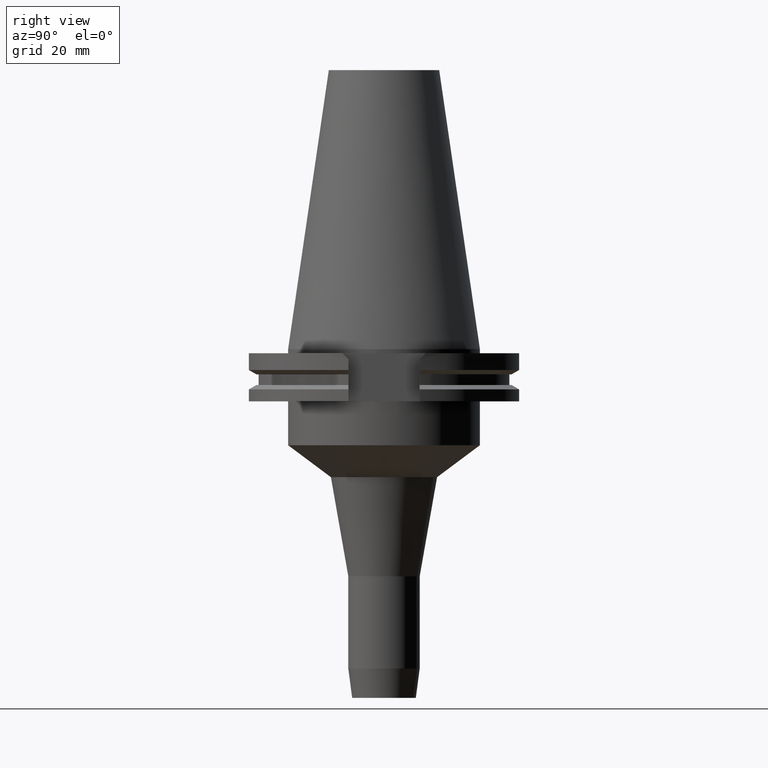
[diagram: clean part render]
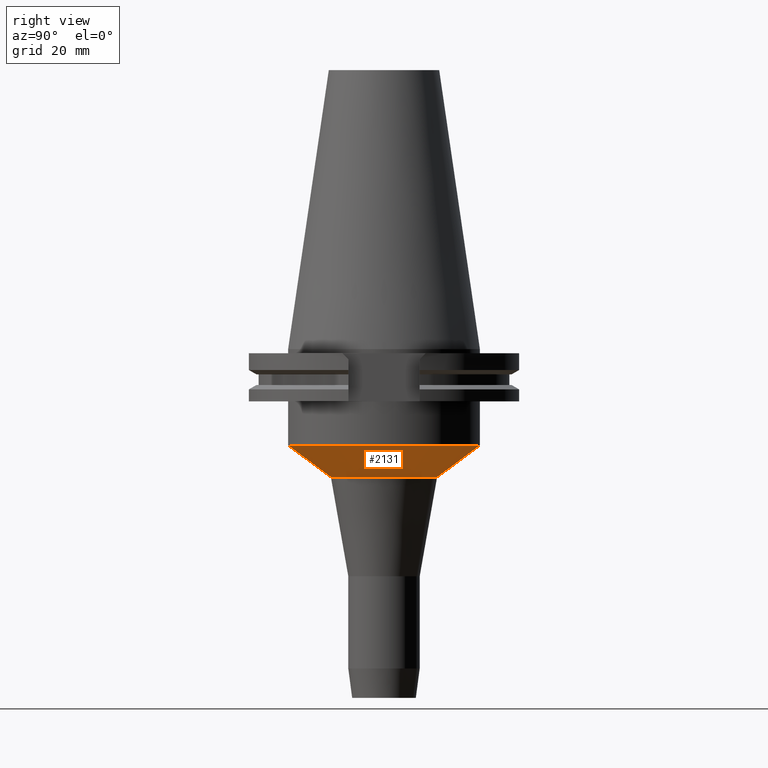
[diagram: same view with one face highlighted and labeled with its STEP entity id]
A machine part, right view. The second image highlights one B-rep face of the part: STEP entity #2131.
In plain terms, the highlighted conical surface has half-angle 53.274 deg.
Its self-contained STEP definition (entity closure, byte-faithful):
#830=DIRECTION('',(0.E0,-8.015043680126E-1,-5.979889196772E-1));
#831=VECTOR('',#830,1.945319080573E1);
#832=CARTESIAN_POINT('',(0.E0,3.4925E1,-3.5E1));
#833=LINE('',#832,#831);
#837=CARTESIAN_POINT('',(0.E0,0.E0,-3.5E1));
#838=DIRECTION('',(0.E0,0.E0,1.E0));
#839=DIRECTION('',(0.E0,-1.E0,0.E0));
#840=AXIS2_PLACEMENT_3D('',#837,#838,#839);
#853=DIRECTION('',(0.E0,8.015043680126E-1,-5.979889196772E-1));
#854=VECTOR('',#853,1.945319080573E1);
#855=CARTESIAN_POINT('',(0.E0,-3.4925E1,-3.5E1));
#856=LINE('',#855,#854);
#898=CARTESIAN_POINT('',(0.E0,0.E0,-4.663279255419E1));
#899=DIRECTION('',(0.E0,0.E0,1.E0));
#900=DIRECTION('',(0.E0,-1.E0,0.E0));
#901=AXIS2_PLACEMENT_3D('',#898,#899,#900);
#1348=CARTESIAN_POINT('',(0.E0,3.4925E1,-3.5E1));
#1349=VERTEX_POINT('',#1348);
#1350=CARTESIAN_POINT('',(0.E0,-3.4925E1,-3.5E1));
#1351=VERTEX_POINT('',#1350);
#1352=CARTESIAN_POINT('',(0.E0,1.933318259743E1,-4.663279255419E1));
#1353=VERTEX_POINT('',#1352);
#1354=CARTESIAN_POINT('',(0.E0,-1.933318259743E1,-4.663279255419E1));
#1355=VERTEX_POINT('',#1354);
#2117=CARTESIAN_POINT('',(0.E0,0.E0,-4.081639627710E1));
#2118=DIRECTION('',(0.E0,0.E0,1.E0));
#2119=DIRECTION('',(0.E0,1.E0,0.E0));
#2120=AXIS2_PLACEMENT_3D('',#2117,#2118,#2119);
#2121=CONICAL_SURFACE('',#2120,2.712909129872E1,5.3274E1);
#2123=ORIENTED_EDGE('',*,*,#2122,.T.);
#2125=ORIENTED_EDGE('',*,*,#2124,.F.);
#2127=ORIENTED_EDGE('',*,*,#2126,.F.);
#2128=ORIENTED_EDGE('',*,*,#2110,.T.);
#2129=EDGE_LOOP('',(#2123,#2125,#2127,#2128));
#2130=FACE_OUTER_BOUND('',#2129,.F.);
#841=CIRCLE('',#840,3.4925E1);
#902=CIRCLE('',#901,1.933318259743E1);
#2110=EDGE_CURVE('',#1351,#1349,#841,.T.);
#2122=EDGE_CURVE('',#1349,#1353,#833,.T.);
#2124=EDGE_CURVE('',#1355,#1353,#902,.T.);
#2126=EDGE_CURVE('',#1351,#1355,#856,.T.);
#2131=ADVANCED_FACE('',(#2130),#2121,.T.);